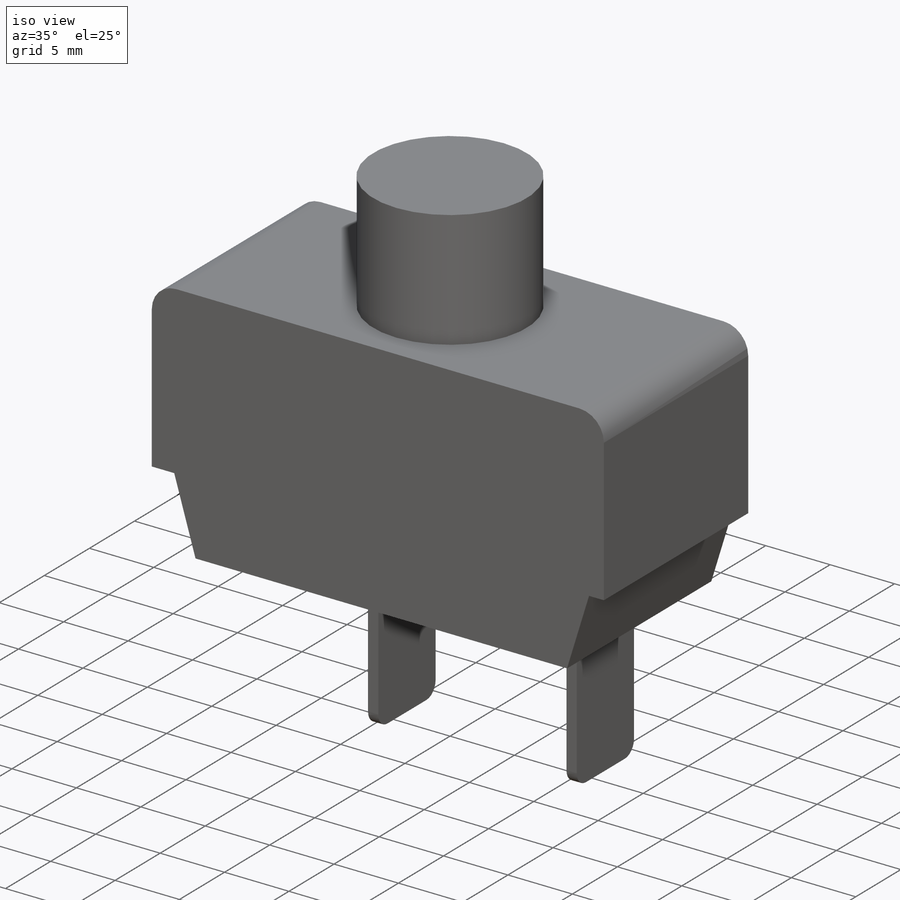
[diagram: iso view]
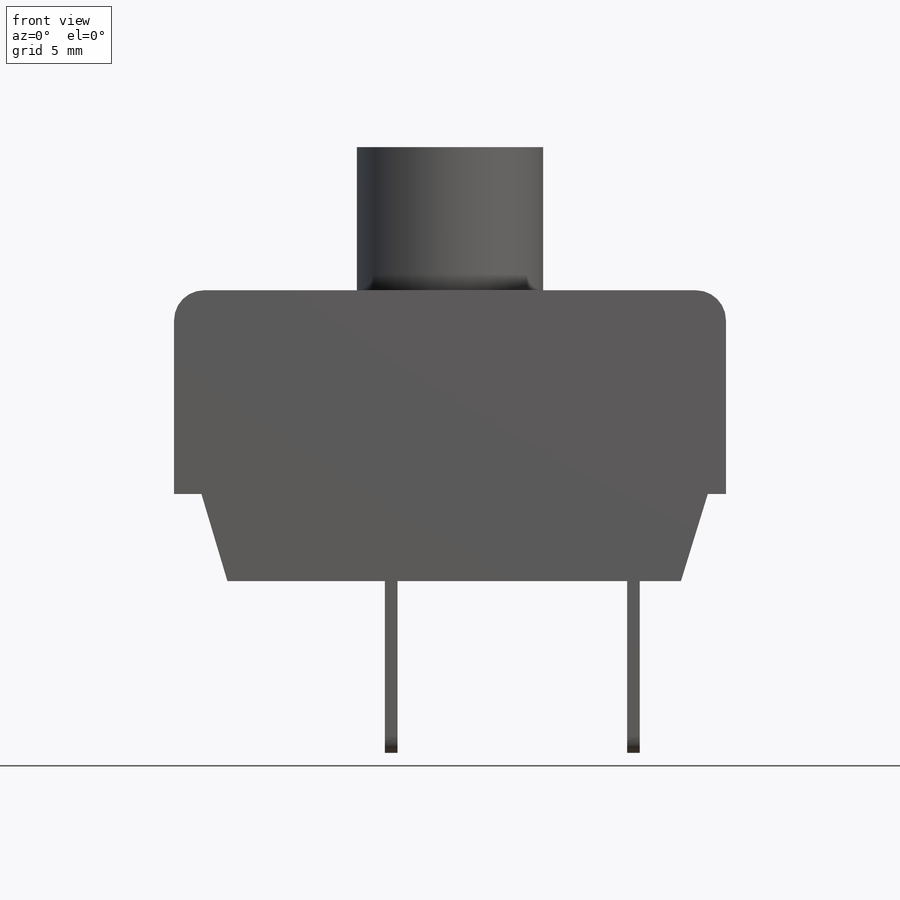
[diagram: front view]
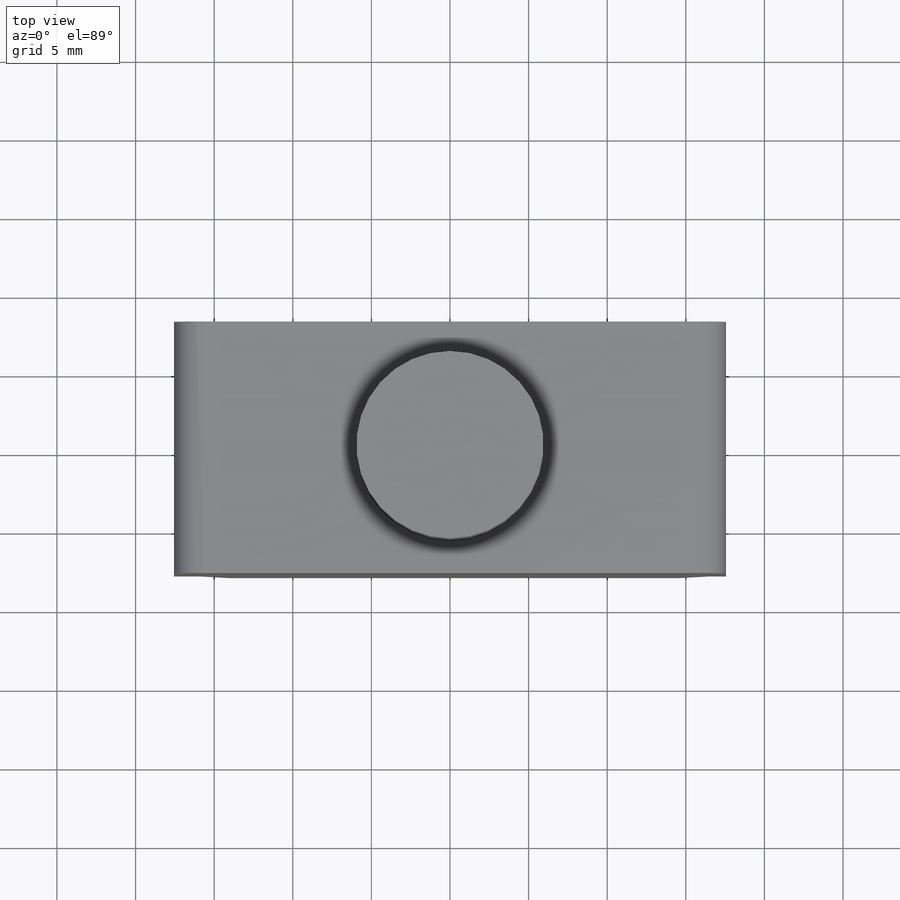
[diagram: top view]
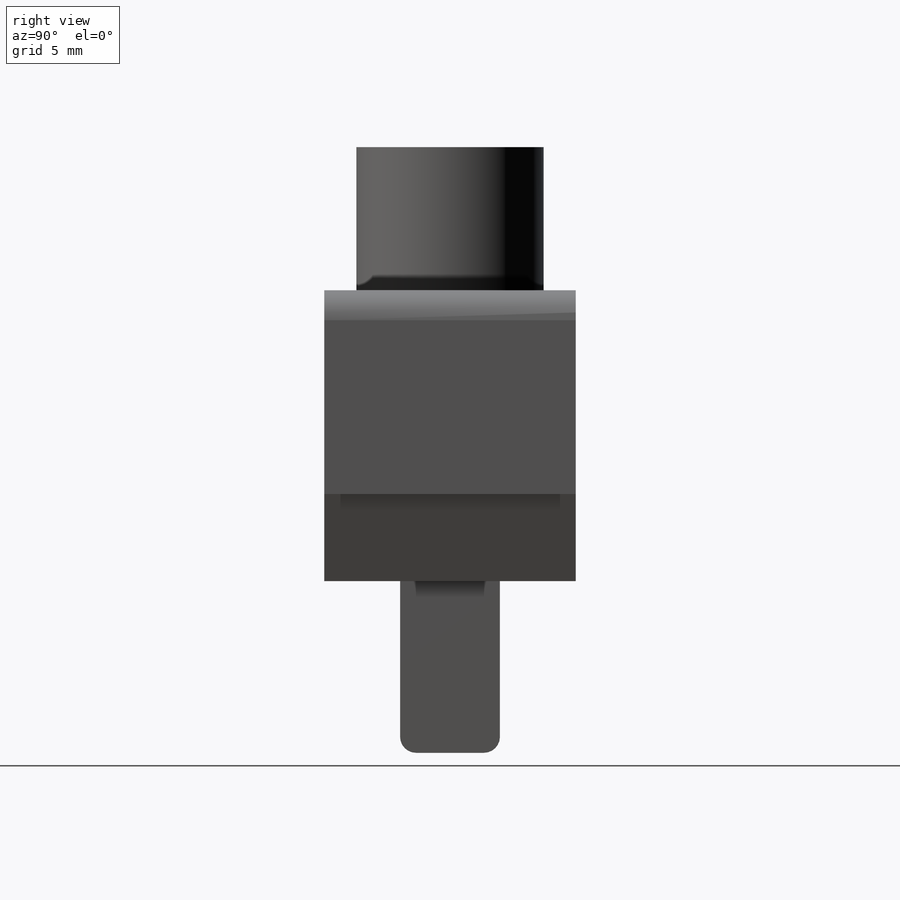
[diagram: right view]
SOLIDWORKS PART (.sldprt)
format: sldprt  version: not decoded by parser v0  size: 657,408 bytes
history: native  units: mm
features: sketch x4, extrude x2, fillet x2, material x1, revolve x1 (+13 scaffold rows collapsed)
feature tree (23):
  scaffold x13  (default folders/planes/origin — collapsed)
  material  "Material <not specified>"
  sketch  "Sketch1"  dims[D1=35.1mm D2=35.1mm D3=18.5mm]
  extrude  "Boss-Extrude1"  Depth=16mm
  fillet  "Fillet1"  Radius=1.905mm
  sketch  "Sketch2"  dims[D1=~11.90625mm]
  extrude  "Boss-Extrude2"  Depth=9.1mm
  sketch  "Sketch3"
  revolve  "Revolve1"  Angle=360deg
  sketch  "Sketch1<4>"  dims[D1=6.35mm D5=0.8mm D6=2.54mm D7=5.0mm]
  fillet  "Fillet2"  Radius=1.016mm
decode coverage: 8 of 9 modeling features carry decoded parameters
note: ~ marks probable driven/reference dimensions
note: suppression state not decoded; provenance and decode notes live in map.json
